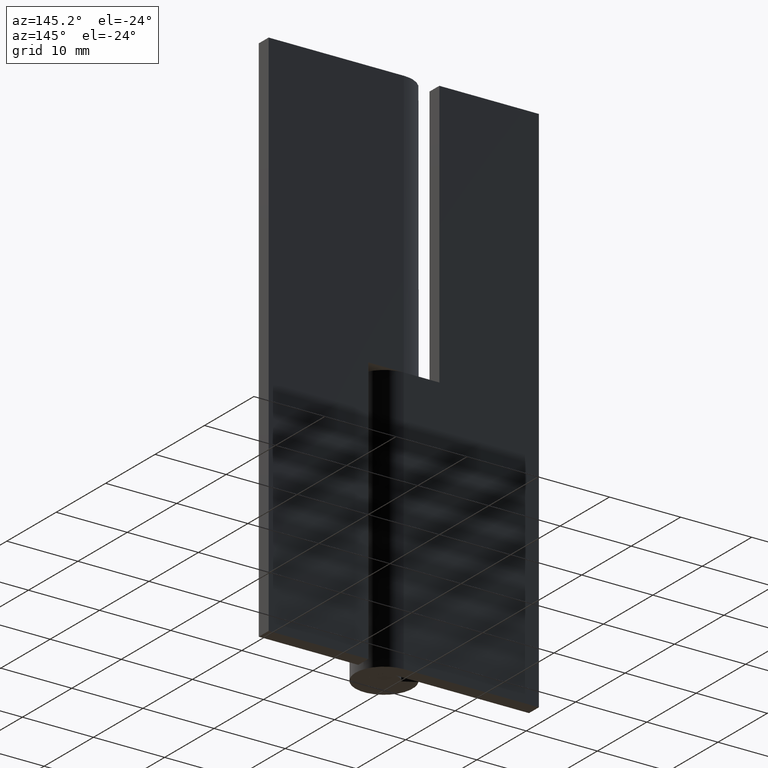
[diagram: clean part render]
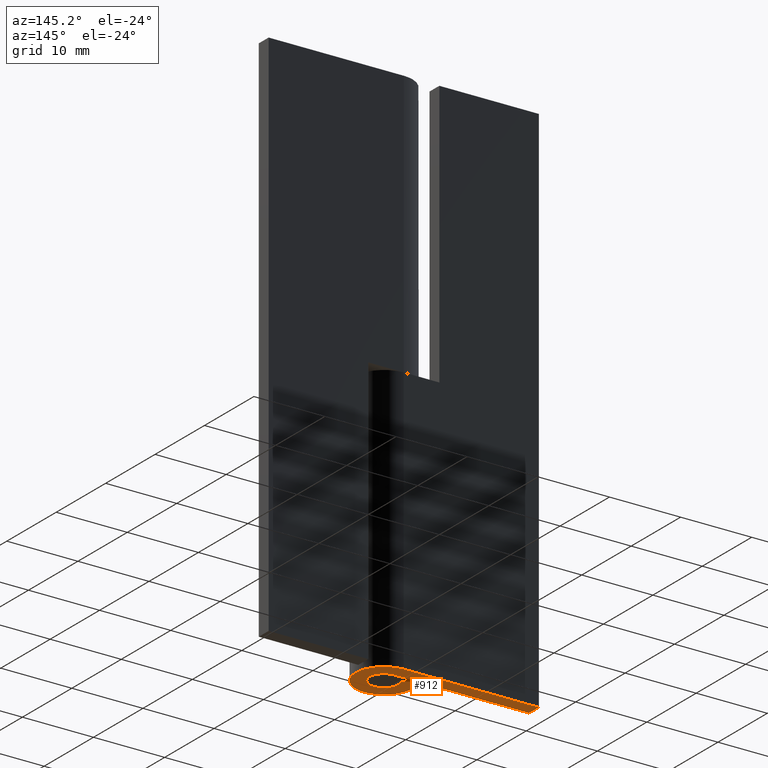
[diagram: same view with one face highlighted and labeled with its STEP entity id]
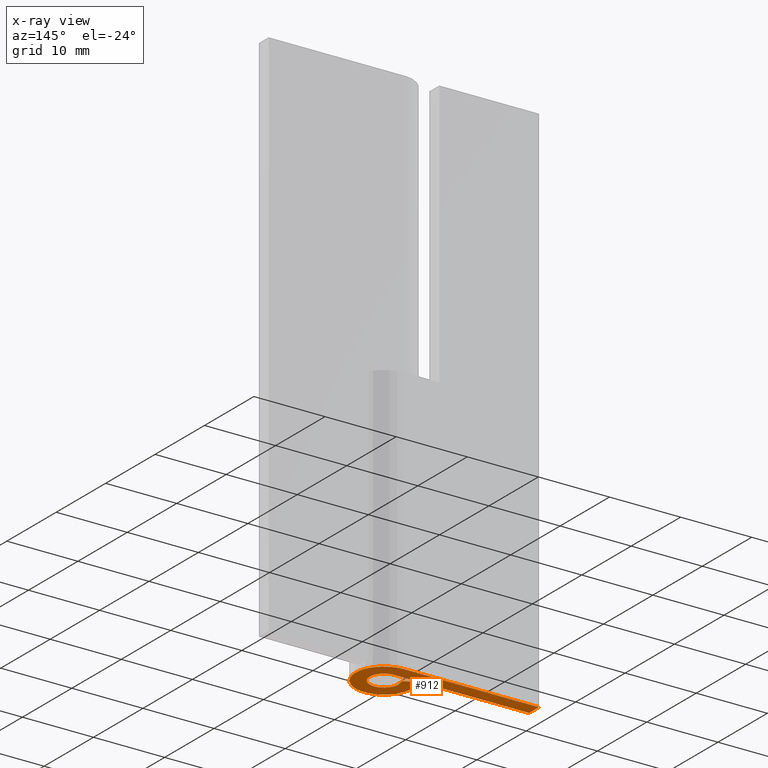
[diagram: x-ray of the same camera — body ghosted, the highlighted face saturated]
A machine part, auxiliary view. The second image highlights one B-rep face of the part: STEP entity #912.
The next image is the same camera in x-ray: the body ghosted, the highlighted face saturated — about 0% of this face is hidden behind the body in this view.
In plain terms, the highlighted face is a freeform B-spline surface patch.
Its self-contained STEP definition (entity closure, byte-faithful):
#835=CARTESIAN_POINT('',(-20.148848089995500,-4.399443773204151,0.0));
#836=CARTESIAN_POINT('',(5.148811361034530,-4.399443773204151,0.0));
#837=CARTESIAN_POINT('',(-20.148848089995500,4.399592767519330,0.0));
#838=CARTESIAN_POINT('',(5.148811361034530,4.399592767519330,0.0));
#839=B_SPLINE_SURFACE_WITH_KNOTS('',1,1,((#835,#837),(#836,#838)),.UNSPECIFIED.,.F.,.F.,.U.,(2,2),(2,2),(0.0,25.297659451030029),(0.0,8.799036540723481),.UNSPECIFIED.);
#840=CARTESIAN_POINT('',(-19.0,4.0,0.0));
#841=VERTEX_POINT('',#840);
#842=CARTESIAN_POINT('',(-7.347638E-016,4.0,0.0));
#843=VERTEX_POINT('',#842);
#844=CARTESIAN_POINT('',(-19.0,4.0,0.0));
#845=CARTESIAN_POINT('',(-7.347638E-016,4.0,0.0));
#846=QUASI_UNIFORM_CURVE('',1,(#844,#845),.UNSPECIFIED.,.F.,.U.);
#847=EDGE_CURVE('',#841,#843,#846,.T.);
#848=ORIENTED_EDGE('',*,*,#847,.T.);
#849=CARTESIAN_POINT('',(-3.492491947020070,1.950000000000000,0.0));
#850=VERTEX_POINT('',#849);
#851=CARTESIAN_POINT('',(0.0,4.0,0.0));
#852=CARTESIAN_POINT('',(3.057904543451449,4.000000000000001,0.0));
#853=CARTESIAN_POINT('',(3.859957943328416,1.049154266891131,0.0));
#854=CARTESIAN_POINT('',(4.662011343205382,-1.901691466217738,0.0));
#855=CARTESIAN_POINT('',(2.024845673131661,-3.449637662132068,0.0));
#856=CARTESIAN_POINT('',(-0.612319996942061,-4.997583858046397,0.0));
#857=CARTESIAN_POINT('',(-2.797770204447353,-2.858755303118233,0.0));
#858=CARTESIAN_POINT('',(-4.983220411952645,-0.719926748190069,0.0));
#859=CARTESIAN_POINT('',(-3.492491947020067,1.949999999999997,0.0));
#867=(BOUNDED_CURVE()B_SPLINE_CURVE(2,(#851,#852,#853,#854,#855,#856,#857,#858,#859),.UNSPECIFIED.,.F.,.U.)B_SPLINE_CURVE_WITH_KNOTS((3,2,2,2,3),(0.0,0.250000000000000,0.500000000000000,0.750000000000000,1.0),.UNSPECIFIED.)CURVE()GEOMETRIC_REPRESENTATION_ITEM()RATIONAL_B_SPLINE_CURVE((1.0,0.794445897063728,1.0,0.794445897063728,1.0,0.794445897063728,1.0,0.794445897063728,1.0))REPRESENTATION_ITEM(''));
#868=EDGE_CURVE('',#843,#850,#867,.T.);
#869=ORIENTED_EDGE('',*,*,#868,.T.);
#870=CARTESIAN_POINT('',(-1.746245973510030,0.975000000000000,0.0));
#871=VERTEX_POINT('',#870);
#872=CARTESIAN_POINT('',(-3.492491947020070,1.950000000000000,0.0));
#873=CARTESIAN_POINT('',(-1.746245973510030,0.975000000000000,0.0));
#874=QUASI_UNIFORM_CURVE('',1,(#872,#873),.UNSPECIFIED.,.F.,.U.);
#875=EDGE_CURVE('',#850,#871,#874,.T.);
#876=ORIENTED_EDGE('',*,*,#875,.T.);
#877=CARTESIAN_POINT('',(1.898817E-015,2.0,0.0));
#878=VERTEX_POINT('',#877);
#879=CARTESIAN_POINT('',(0.0,2.0,0.0));
#880=CARTESIAN_POINT('',(1.528952271725726,1.999999999999999,0.0));
#881=CARTESIAN_POINT('',(1.929978971664208,0.524577133445564,0.0));
#882=CARTESIAN_POINT('',(2.331005671602691,-0.950845733108873,0.0));
#883=CARTESIAN_POINT('',(1.012422836565827,-1.724818831066035,0.0));
#884=CARTESIAN_POINT('',(-0.306159998471035,-2.498791929023196,0.0));
#885=CARTESIAN_POINT('',(-1.398885102223679,-1.429377651559113,0.0));
#886=CARTESIAN_POINT('',(-2.491610205976324,-0.359963374095030,0.0));
#887=CARTESIAN_POINT('',(-1.746245973510031,0.975000000000002,0.0));
#895=(BOUNDED_CURVE()B_SPLINE_CURVE(2,(#879,#880,#881,#882,#883,#884,#885,#886,#887),.UNSPECIFIED.,.F.,.U.)B_SPLINE_CURVE_WITH_KNOTS((3,2,2,2,3),(0.0,0.250000000000000,0.500000000000000,0.750000000000000,1.0),.UNSPECIFIED.)CURVE()GEOMETRIC_REPRESENTATION_ITEM()RATIONAL_B_SPLINE_CURVE((1.0,0.794445897063728,1.0,0.794445897063728,1.0,0.794445897063728,1.0,0.794445897063728,1.0))REPRESENTATION_ITEM(''));
#896=EDGE_CURVE('',#878,#871,#895,.T.);
#897=ORIENTED_EDGE('',*,*,#896,.F.);
#898=CARTESIAN_POINT('',(-19.0,2.0,0.0));
#899=VERTEX_POINT('',#898);
#900=CARTESIAN_POINT('',(1.898817E-015,2.0,0.0));
#901=CARTESIAN_POINT('',(-19.0,2.0,0.0));
#902=QUASI_UNIFORM_CURVE('',1,(#900,#901),.UNSPECIFIED.,.F.,.U.);
#903=EDGE_CURVE('',#878,#899,#902,.T.);
#904=ORIENTED_EDGE('',*,*,#903,.T.);
#905=CARTESIAN_POINT('',(-19.0,2.0,0.0));
#906=CARTESIAN_POINT('',(-19.0,4.0,0.0));
#907=QUASI_UNIFORM_CURVE('',1,(#905,#906),.UNSPECIFIED.,.F.,.U.);
#908=EDGE_CURVE('',#899,#841,#907,.T.);
#909=ORIENTED_EDGE('',*,*,#908,.T.);
#910=EDGE_LOOP('',(#848,#869,#876,#897,#904,#909));
#911=FACE_OUTER_BOUND('',#910,.T.);
#912=ADVANCED_FACE('',(#911),#839,.F.);